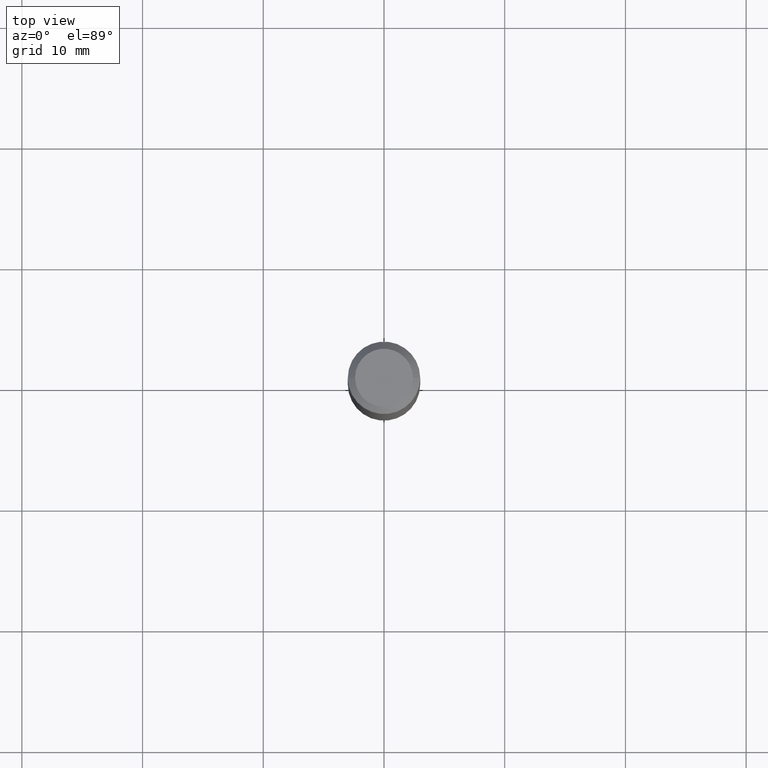
[diagram: clean part render]
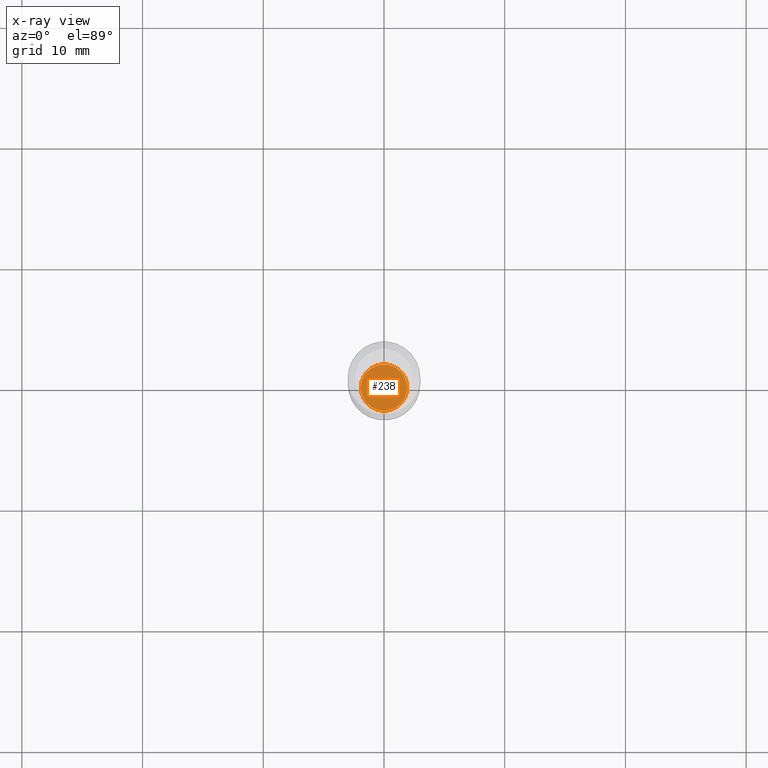
[diagram: x-ray — body ghosted, one internal face saturated and labeled with its STEP entity id]
A machine part, top view, then the same camera in x-ray: the body is ghosted and one INTERNAL B-rep face — a face not visible from any outside direction — is saturated and labeled: STEP entity #238.
In plain terms, the highlighted planar face has unit normal (-0, 0, 1).
Its self-contained STEP definition (entity closure, byte-faithful):
#3 = VERTEX_POINT ( 'NONE', #344 ) ;
#47 = DIRECTION ( 'NONE',  ( -2.438088387897960049E-29, 3.491481338843145188E-15, 1.000000000000000000 ) ) ;
#59 = DIRECTION ( 'NONE',  ( -2.445468806185136597E-29, 3.491481338843145583E-15, 1.000000000000000000 ) ) ;
#93 = CIRCLE ( 'NONE', #262, 0.07549999999999999767 ) ;
#135 = CARTESIAN_POINT ( 'NONE',  ( 4.583297636552182524E-29, -6.543734325259823512E-15, -1.874199999999999866 ) ) ;
#171 = VERTEX_POINT ( 'NONE', #274 ) ;
#227 = AXIS2_PLACEMENT_3D ( 'NONE', #378, #301, #458 ) ;
#238 = ADVANCED_FACE ( 'NONE', ( #452 ), #367, .F. ) ;
#262 = AXIS2_PLACEMENT_3D ( 'NONE', #135, #59, #297 ) ;
#272 = ORIENTED_EDGE ( 'NONE', *, *, #392, .F. ) ;
#274 = CARTESIAN_POINT ( 'NONE',  ( 0.07549999999999999767, -7.070948007425136523E-15, -1.874199999999999866 ) ) ;
#297 = DIRECTION ( 'NONE',  ( 1.000000000000000000, -6.982962677686262766E-15, 0.000000000000000000 ) ) ;
#301 = DIRECTION ( 'NONE',  ( -2.445468806185136597E-29, 3.491481338843145583E-15, 1.000000000000000000 ) ) ;
#331 = DIRECTION ( 'NONE',  ( 1.000000000000000000, -6.982962677686265922E-15, 4.876176775795935793E-29 ) ) ;
#344 = CARTESIAN_POINT ( 'NONE',  ( -0.07549999999999999767, -6.004625332586837378E-15, -1.874199999999999866 ) ) ;
#347 = EDGE_LOOP ( 'NONE', ( #272, #380 ) ) ;
#367 = PLANE ( 'NONE',  #404 ) ;
#368 = CARTESIAN_POINT ( 'NONE',  ( 4.583297636552182524E-29, -6.543734325259823512E-15, -1.874199999999999866 ) ) ;
#378 = CARTESIAN_POINT ( 'NONE',  ( 4.583297636552182524E-29, -6.543734325259823512E-15, -1.874199999999999866 ) ) ;
#380 = ORIENTED_EDGE ( 'NONE', *, *, #484, .F. ) ;
#389 = CIRCLE ( 'NONE', #227, 0.07549999999999999767 ) ;
#392 = EDGE_CURVE ( 'NONE', #171, #3, #389, .T. ) ;
#404 = AXIS2_PLACEMENT_3D ( 'NONE', #368, #47, #331 ) ;
#452 = FACE_OUTER_BOUND ( 'NONE', #347, .T. ) ;
#458 = DIRECTION ( 'NONE',  ( 1.000000000000000000, -6.982962677686262766E-15, 0.000000000000000000 ) ) ;
#484 = EDGE_CURVE ( 'NONE', #3, #171, #93, .T. ) ;